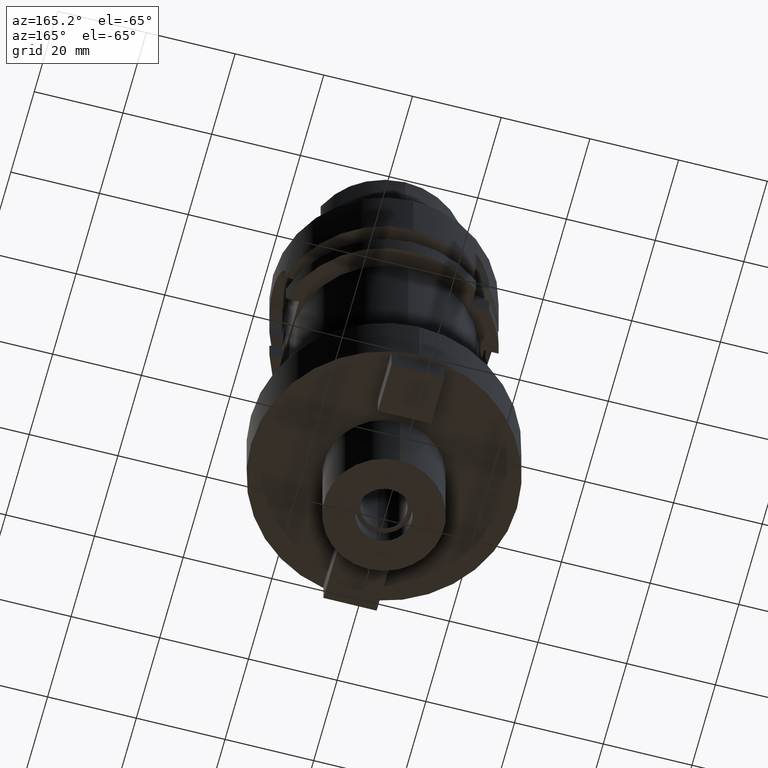
[diagram: clean part render]
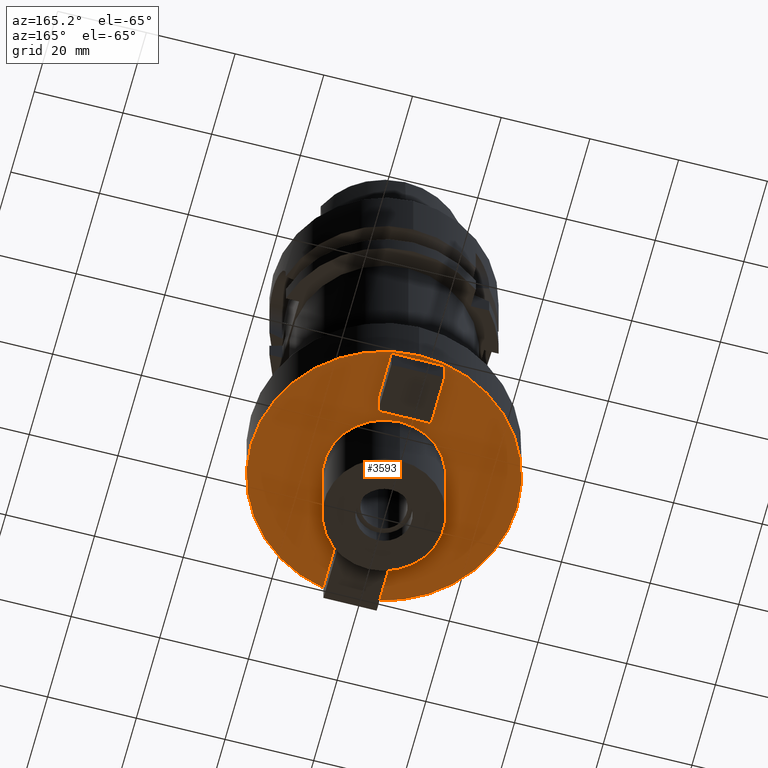
[diagram: same view with one face highlighted and labeled with its STEP entity id]
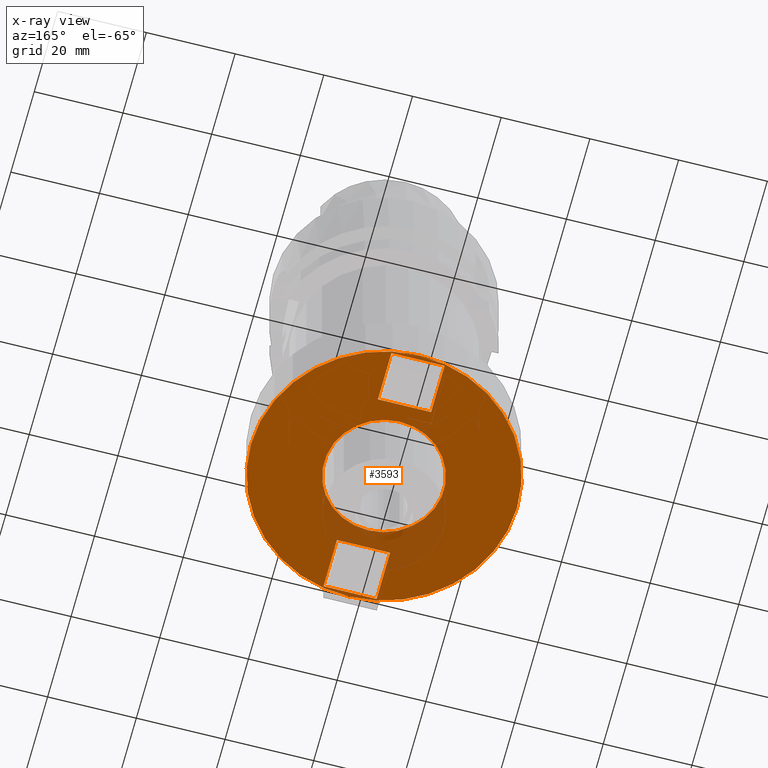
[diagram: x-ray of the same camera — body ghosted, the highlighted face saturated]
A machine part, auxiliary view. The second image highlights one B-rep face of the part: STEP entity #3593.
The next image is the same camera in x-ray: the body ghosted, the highlighted face saturated — about 10% of this face is hidden behind the body in this view.
In plain terms, the highlighted planar face has unit normal (0, 0, 1).
Its self-contained STEP definition (entity closure, byte-faithful):
#1059=CARTESIAN_POINT('',(0.E0,0.E0,-9.E1));
#1060=DIRECTION('',(0.E0,0.E0,1.E0));
#1061=DIRECTION('',(0.E0,-1.E0,0.E0));
#1062=AXIS2_PLACEMENT_3D('',#1059,#1060,#1061);
#1067=CARTESIAN_POINT('',(0.E0,0.E0,-9.E1));
#1068=DIRECTION('',(0.E0,0.E0,1.E0));
#1069=DIRECTION('',(0.E0,1.E0,0.E0));
#1070=AXIS2_PLACEMENT_3D('',#1067,#1068,#1069);
#1075=CARTESIAN_POINT('',(0.E0,0.E0,-9.E1));
#1076=DIRECTION('',(0.E0,0.E0,-1.E0));
#1077=DIRECTION('',(0.E0,-1.E0,0.E0));
#1078=AXIS2_PLACEMENT_3D('',#1075,#1076,#1077);
#1083=CARTESIAN_POINT('',(0.E0,0.E0,-9.E1));
#1084=DIRECTION('',(0.E0,0.E0,-1.E0));
#1085=DIRECTION('',(0.E0,1.E0,0.E0));
#1086=AXIS2_PLACEMENT_3D('',#1083,#1084,#1085);
#1091=DIRECTION('',(0.E0,1.E0,0.E0));
#1092=VECTOR('',#1091,1.15E1);
#1093=CARTESIAN_POINT('',(-6.E0,1.75E1,-9.E1));
#1094=LINE('',#1093,#1092);
#1098=DIRECTION('',(-1.E0,0.E0,0.E0));
#1099=VECTOR('',#1098,1.2E1);
#1100=CARTESIAN_POINT('',(6.E0,1.75E1,-9.E1));
#1101=LINE('',#1100,#1099);
#1105=DIRECTION('',(0.E0,-1.E0,0.E0));
#1106=VECTOR('',#1105,1.15E1);
#1107=CARTESIAN_POINT('',(6.E0,-1.75E1,-9.E1));
#1108=LINE('',#1107,#1106);
#1112=DIRECTION('',(1.E0,0.E0,0.E0));
#1113=VECTOR('',#1112,1.2E1);
#1114=CARTESIAN_POINT('',(-6.E0,-1.75E1,-9.E1));
#1115=LINE('',#1114,#1113);
#2203=DIRECTION('',(0.E0,1.E0,0.E0));
#2204=VECTOR('',#2203,1.15E1);
#2205=CARTESIAN_POINT('',(6.E0,1.75E1,-9.E1));
#2206=LINE('',#2205,#2204);
#2231=DIRECTION('',(-1.E0,0.E0,0.E0));
#2232=VECTOR('',#2231,1.2E1);
#2233=CARTESIAN_POINT('',(6.E0,2.9E1,-9.E1));
#2234=LINE('',#2233,#2232);
#2273=DIRECTION('',(0.E0,-1.E0,0.E0));
#2274=VECTOR('',#2273,1.15E1);
#2275=CARTESIAN_POINT('',(-6.E0,-1.75E1,-9.E1));
#2276=LINE('',#2275,#2274);
#2301=DIRECTION('',(1.E0,0.E0,0.E0));
#2302=VECTOR('',#2301,1.2E1);
#2303=CARTESIAN_POINT('',(-6.E0,-2.9E1,-9.E1));
#2304=LINE('',#2303,#2302);
#2583=CARTESIAN_POINT('',(0.E0,1.35E1,-9.E1));
#2584=VERTEX_POINT('',#2583);
#2585=CARTESIAN_POINT('',(0.E0,-1.35E1,-9.E1));
#2586=VERTEX_POINT('',#2585);
#2587=CARTESIAN_POINT('',(0.E0,-3.E1,-9.E1));
#2588=CARTESIAN_POINT('',(0.E0,3.E1,-9.E1));
#2589=VERTEX_POINT('',#2587);
#2590=VERTEX_POINT('',#2588);
#2591=CARTESIAN_POINT('',(-6.E0,1.75E1,-9.E1));
#2592=CARTESIAN_POINT('',(-6.E0,2.9E1,-9.E1));
#2593=VERTEX_POINT('',#2591);
#2594=VERTEX_POINT('',#2592);
#2595=CARTESIAN_POINT('',(6.E0,2.9E1,-9.E1));
#2596=VERTEX_POINT('',#2595);
#2597=CARTESIAN_POINT('',(6.E0,1.75E1,-9.E1));
#2598=VERTEX_POINT('',#2597);
#2599=CARTESIAN_POINT('',(6.E0,-1.75E1,-9.E1));
#2600=CARTESIAN_POINT('',(6.E0,-2.9E1,-9.E1));
#2601=VERTEX_POINT('',#2599);
#2602=VERTEX_POINT('',#2600);
#2603=CARTESIAN_POINT('',(-6.E0,-2.9E1,-9.E1));
#2604=VERTEX_POINT('',#2603);
#2605=CARTESIAN_POINT('',(-6.E0,-1.75E1,-9.E1));
#2606=VERTEX_POINT('',#2605);
#3558=CARTESIAN_POINT('',(0.E0,0.E0,-9.E1));
#3559=DIRECTION('',(0.E0,0.E0,1.E0));
#3560=DIRECTION('',(0.E0,1.E0,0.E0));
#3561=AXIS2_PLACEMENT_3D('',#3558,#3559,#3560);
#3562=PLANE('',#3561);
#3564=ORIENTED_EDGE('',*,*,#3563,.T.);
#3566=ORIENTED_EDGE('',*,*,#3565,.T.);
#3567=EDGE_LOOP('',(#3564,#3566));
#3568=FACE_OUTER_BOUND('',#3567,.F.);
#3569=ORIENTED_EDGE('',*,*,#3551,.T.);
#3570=ORIENTED_EDGE('',*,*,#3540,.T.);
#3571=EDGE_LOOP('',(#3569,#3570));
#3572=FACE_BOUND('',#3571,.F.);
#3574=ORIENTED_EDGE('',*,*,#3573,.T.);
#3576=ORIENTED_EDGE('',*,*,#3575,.F.);
#3578=ORIENTED_EDGE('',*,*,#3577,.F.);
#3580=ORIENTED_EDGE('',*,*,#3579,.T.);
#3581=EDGE_LOOP('',(#3574,#3576,#3578,#3580));
#3582=FACE_BOUND('',#3581,.F.);
#3584=ORIENTED_EDGE('',*,*,#3583,.T.);
#3586=ORIENTED_EDGE('',*,*,#3585,.F.);
#3588=ORIENTED_EDGE('',*,*,#3587,.F.);
#3590=ORIENTED_EDGE('',*,*,#3589,.T.);
#3591=EDGE_LOOP('',(#3584,#3586,#3588,#3590));
#3592=FACE_BOUND('',#3591,.F.);
#1063=CIRCLE('',#1062,3.E1);
#1071=CIRCLE('',#1070,3.E1);
#1079=CIRCLE('',#1078,1.35E1);
#1087=CIRCLE('',#1086,1.35E1);
#3540=EDGE_CURVE('',#2584,#2586,#1087,.T.);
#3551=EDGE_CURVE('',#2586,#2584,#1079,.T.);
#3563=EDGE_CURVE('',#2589,#2590,#1063,.T.);
#3565=EDGE_CURVE('',#2590,#2589,#1071,.T.);
#3573=EDGE_CURVE('',#2593,#2594,#1094,.T.);
#3575=EDGE_CURVE('',#2596,#2594,#2234,.T.);
#3577=EDGE_CURVE('',#2598,#2596,#2206,.T.);
#3579=EDGE_CURVE('',#2598,#2593,#1101,.T.);
#3583=EDGE_CURVE('',#2601,#2602,#1108,.T.);
#3585=EDGE_CURVE('',#2604,#2602,#2304,.T.);
#3587=EDGE_CURVE('',#2606,#2604,#2276,.T.);
#3589=EDGE_CURVE('',#2606,#2601,#1115,.T.);
#3593=ADVANCED_FACE('',(#3568,#3572,#3582,#3592),#3562,.F.);